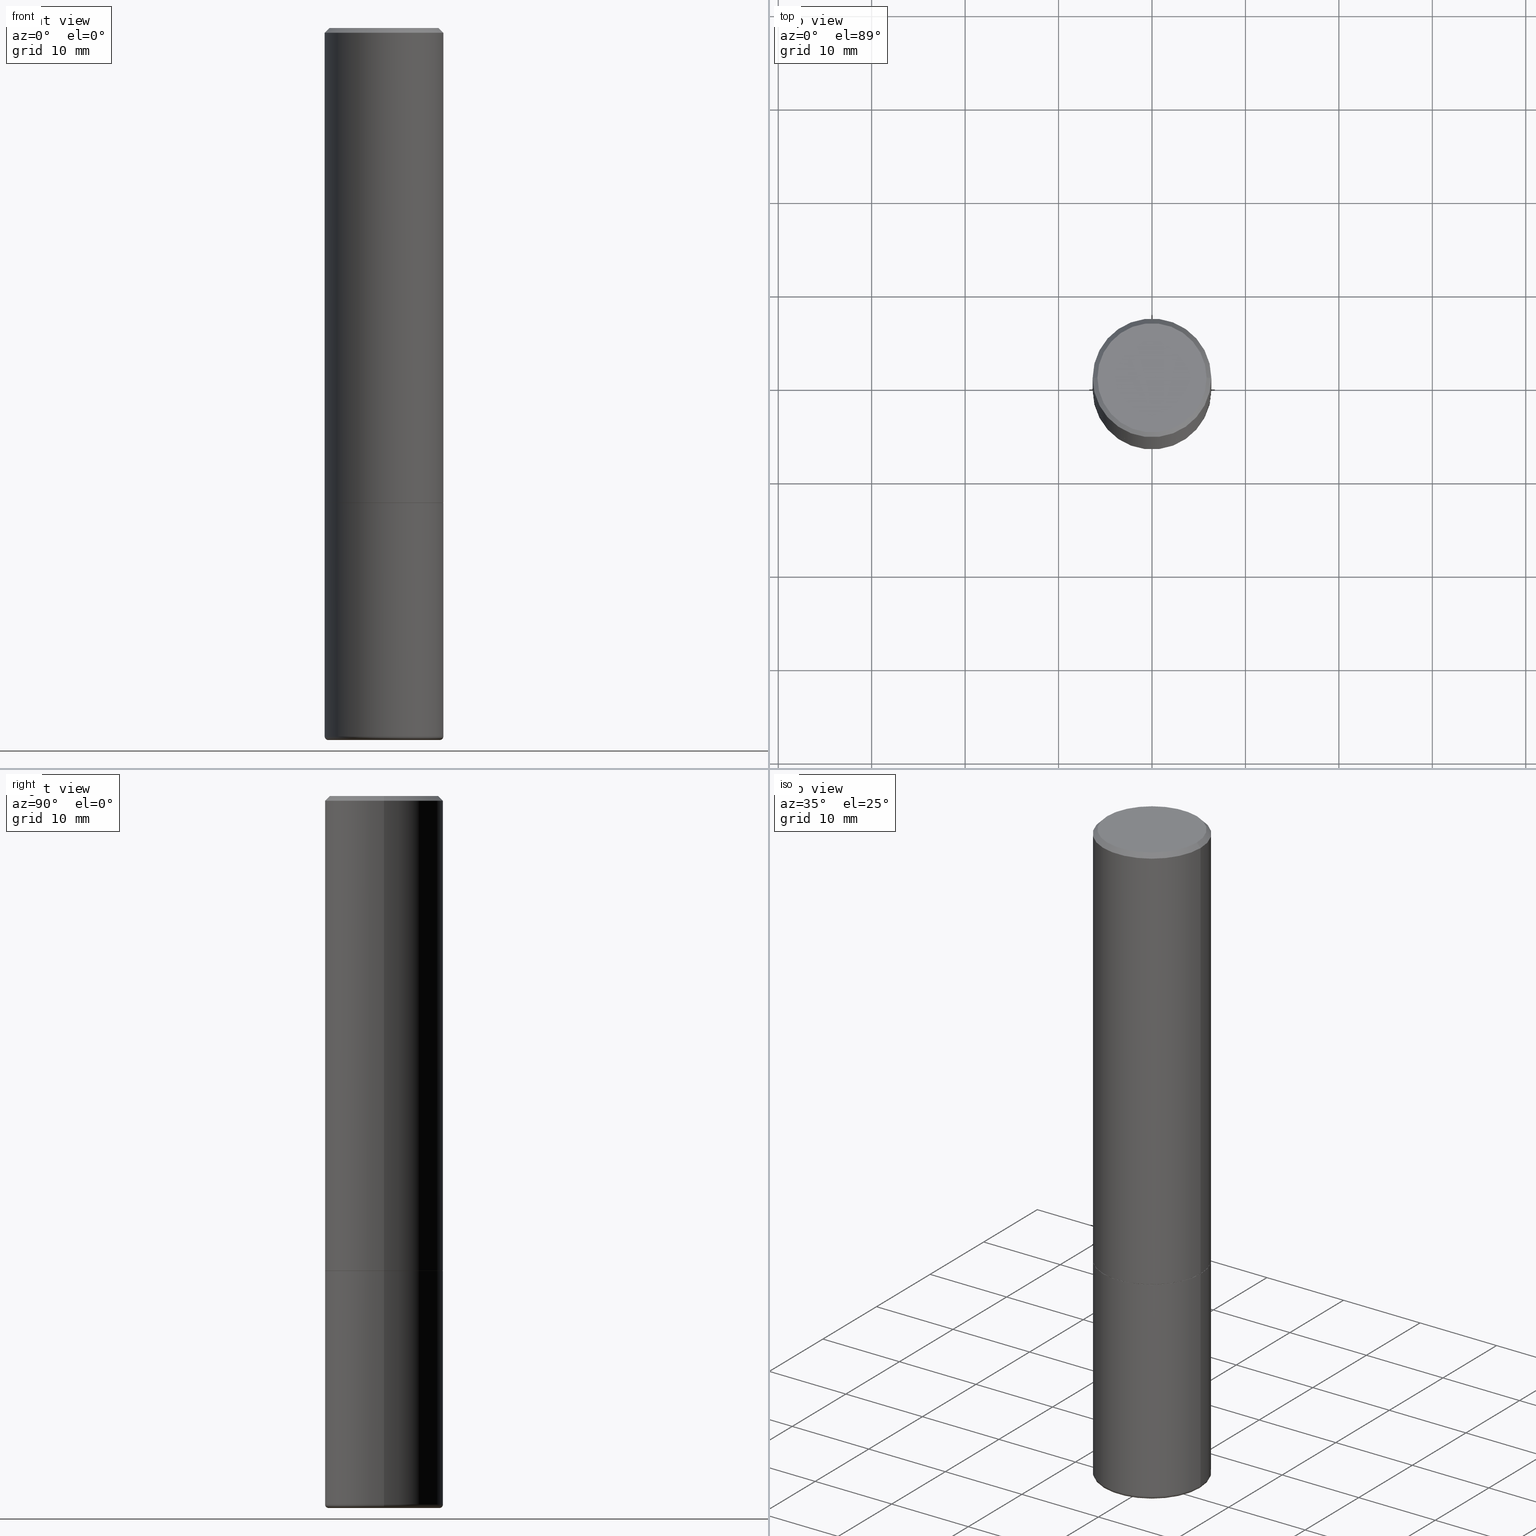
[diagram: canonical four-view strip — front | top / right | iso, engineering-drawing reading convention]
A machine part, canonical four-view strip (front | top / right | iso — engineering-drawing reading convention). The complete STEP part file that produces these views, byte-faithful:
ISO-10303-21;
HEADER;
FILE_DESCRIPTION (( 'STEP AP203' ),
    '1' );
FILE_NAME ('35694.STEP',
    '2022-11-02T20:44:12',
    ( '' ),
    ( '' ),
    'SwSTEP 2.0',
    'SolidWorks 2022',
    '' );
FILE_SCHEMA (( 'CONFIG_CONTROL_DESIGN' ));
ENDSEC;

DATA;
#1 = ADVANCED_BREP_SHAPE_REPRESENTATION ( '35694', ( #387, #395, #314 ), #342 ) ;
#2 = DIRECTION ( 'NONE',  ( 1.000000000000000000, -6.982962677686264344E-15, 0.000000000000000000 ) ) ;
#3 = AXIS2_PLACEMENT_3D ( 'NONE', #38, #111, #117 ) ;
#4 = VECTOR ( 'NONE', #438, 39.37007874015748854 ) ;
#5 = CARTESIAN_POINT ( 'NONE',  ( 7.335837353245335032E-29, -1.047363154208458493E-14, -2.999767298070359800 ) ) ;
#6 = PRODUCT_DEFINITION ( 'UNKNOWN', '', #98, #492 ) ;
#7 = ORIENTED_EDGE ( 'NONE', *, *, #339, .F. ) ;
#8 = DIRECTION ( 'NONE',  ( -2.445468806185136597E-29, 3.491481338843145583E-15, 1.000000000000000000 ) ) ;
#9 = EDGE_CURVE ( 'NONE', #241, #45, #279, .T. ) ;
#10 = ORIENTED_EDGE ( 'NONE', *, *, #309, .T. ) ;
#11 = DIRECTION ( 'NONE',  ( 1.000000000000000000, -6.982962677686266711E-15, 0.000000000000000000 ) ) ;
#12 = AXIS2_PLACEMENT_3D ( 'NONE', #312, #310, #11 ) ;
#13 = LOCAL_TIME ( 16, 44, 12.00000000000000000, #350 ) ;
#14 = CARTESIAN_POINT ( 'NONE',  ( 4.890937612370273754E-29, -6.982962677686291954E-15, -2.000000000000000444 ) ) ;
#15 = ORIENTED_EDGE ( 'NONE', *, *, #309, .F. ) ;
#16 = ORIENTED_EDGE ( 'NONE', *, *, #400, .F. ) ;
#17 = EDGE_CURVE ( 'NONE', #283, #45, #454, .T. ) ;
#18 = CALENDAR_DATE ( 2022, 2, 11 ) ;
#19 = ORIENTED_EDGE ( 'NONE', *, *, #268, .F. ) ;
#20 = AXIS2_PLACEMENT_3D ( 'NONE', #78, #193, #233 ) ;
#21 = ORIENTED_EDGE ( 'NONE', *, *, #272, .T. ) ;
#22 = ORIENTED_EDGE ( 'NONE', *, *, #339, .T. ) ;
#23 = PERSON_AND_ORGANIZATION_ROLE ( 'design_owner' ) ;
#24 = ADVANCED_FACE ( 'NONE', ( #138 ), #250, .F. ) ;
#25 = APPROVAL_ROLE ( '' ) ;
#26 = EDGE_CURVE ( 'NONE', #380, #348, #255, .T. ) ;
#27 = DIRECTION ( 'NONE',  ( -2.445468806185136597E-29, 3.491481338843145583E-15, 1.000000000000000000 ) ) ;
#28 = CARTESIAN_POINT ( 'NONE',  ( -0.2489999999999999991, -5.208412811295420884E-15, -2.000000000000000444 ) ) ;
#29 = VECTOR ( 'NONE', #343, 39.37007874015748143 ) ;
#30 = AXIS2_PLACEMENT_3D ( 'NONE', #375, #365, #149 ) ;
#31 = EDGE_LOOP ( 'NONE', ( #86, #83 ) ) ;
#32 = CARTESIAN_POINT ( 'NONE',  ( -0.2299999999999991773, 1.640996229256267194E-15, 4.268512490089056766E-18 ) ) ;
#33 = DIRECTION ( 'NONE',  ( 7.105427357601001859E-15, 1.000000000000000000, -3.491481338843145583E-15 ) ) ;
#34 = CARTESIAN_POINT ( 'NONE',  ( 0.2350000000000001810, -1.206307001987672688E-14, -2.985000571154037718 ) ) ;
#35 = DIRECTION ( 'NONE',  ( 1.000000000000000000, -6.982962677686266711E-15, 0.000000000000000000 ) ) ;
#36 = CIRCLE ( 'NONE', #180, 0.2500000000000000000 ) ;
#37 = VECTOR ( 'NONE', #479, 39.37007874015748143 ) ;
#38 = CARTESIAN_POINT ( 'NONE',  ( 4.890937612370273754E-29, -6.982962677686291954E-15, -2.000000000000000444 ) ) ;
#39 = CALENDAR_DATE ( 2022, 2, 11 ) ;
#40 = CC_DESIGN_PERSON_AND_ORGANIZATION_ASSIGNMENT ( #115, #263, ( #98 ) ) ;
#41 = DATE_AND_TIME ( #299, #182 ) ;
#42 = VERTEX_POINT ( 'NONE', #482 ) ;
#43 = CONICAL_SURFACE ( 'NONE', #79, 0.2489999999999999991, 0.7853981633974141952 ) ;
#44 = AXIS2_PLACEMENT_3D ( 'NONE', #221, #261, #490 ) ;
#45 = VERTEX_POINT ( 'NONE', #366 ) ;
#46 = CARTESIAN_POINT ( 'NONE',  ( 0.2499999999999993061, -1.784954126219741456E-15, -0.02000000000000011838 ) ) ;
#47 = CARTESIAN_POINT ( 'NONE',  ( 7.299725783202014843E-29, -1.042207379062045357E-14, -2.985000571154037718 ) ) ;
#48 = CALENDAR_DATE ( 2022, 2, 11 ) ;
#49 = VERTEX_POINT ( 'NONE', #32 ) ;
#50 = CLOSED_SHELL ( 'NONE', ( #210, #433, #253, #166, #413, #167, #73, #244 ) ) ;
#51 = AXIS2_PLACEMENT_3D ( 'NONE', #446, #401, #441 ) ;
#52 = ORIENTED_EDGE ( 'NONE', *, *, #418, .T. ) ;
#53 = COORDINATED_UNIVERSAL_TIME_OFFSET ( 5, 0, .BEHIND. ) ;
#54 = ORIENTED_EDGE ( 'NONE', *, *, #352, .F. ) ;
#55 = ORIENTED_EDGE ( 'NONE', *, *, #292, .F. ) ;
#56 = AXIS2_PLACEMENT_3D ( 'NONE', #125, #280, #228 ) ;
#57 = CIRCLE ( 'NONE', #408, 0.2500000000000000000 ) ;
#58 = CARTESIAN_POINT ( 'NONE',  ( -0.2499999999999996669, 1.776356839400248098E-15, -1.229733772563724764E-29 ) ) ;
#59 = ORIENTED_EDGE ( 'NONE', *, *, #145, .F. ) ;
#60 = CARTESIAN_POINT ( 'NONE',  ( -0.2489999999999999991, -5.213711265643642498E-15, -2.000000000000000444 ) ) ;
#61 = DIRECTION ( 'NONE',  ( 1.000000000000000000, -6.982962677686213068E-15, 0.000000000000000000 ) ) ;
#62 = CC_DESIGN_PERSON_AND_ORGANIZATION_ASSIGNMENT ( #92, #313, ( #6 ) ) ;
#63 = ORIENTED_EDGE ( 'NONE', *, *, #272, .F. ) ;
#64 = DIRECTION ( 'NONE',  ( 1.000000000000000000, -6.982962677686267499E-15, 0.000000000000000000 ) ) ;
#65 = CIRCLE ( 'NONE', #328, 0.2489999999999999991 ) ;
#66 = LINE ( 'NONE', #368, #378 ) ;
#67 = CARTESIAN_POINT ( 'NONE',  ( 7.335837353245335032E-29, -1.047363154208458493E-14, -2.999767298070359800 ) ) ;
#68 = FACE_OUTER_BOUND ( 'NONE', #126, .T. ) ;
#69 = DIRECTION ( 'NONE',  ( -2.445468806185136597E-29, 3.491481338843145583E-15, 1.000000000000000000 ) ) ;
#70 = CONICAL_SURFACE ( 'NONE', #427, 0.2348691019675246683, 1.562069680534929894 ) ;
#71 = COORDINATED_UNIVERSAL_TIME_OFFSET ( 5, 0, .BEHIND. ) ;
#72 = LINE ( 'NONE', #308, #29 ) ;
#73 = ADVANCED_FACE ( 'NONE', ( #444 ), #293, .F. ) ;
#74 = DIRECTION ( 'NONE',  ( 2.445468806185136597E-29, -3.491481338843145583E-15, -1.000000000000000000 ) ) ;
#75 = EDGE_CURVE ( 'NONE', #380, #163, #65, .T. ) ;
#76 = DIRECTION ( 'NONE',  ( -1.000000000000000000, 6.982962677686267499E-15, 0.000000000000000000 ) ) ;
#77 = VERTEX_POINT ( 'NONE', #106 ) ;
#78 = CARTESIAN_POINT ( 'NONE',  ( 7.336406418555409790E-29, -1.047444401652943635E-14, -3.000000000000000444 ) ) ;
#79 = AXIS2_PLACEMENT_3D ( 'NONE', #459, #148, #452 ) ;
#80 = EDGE_CURVE ( 'NONE', #431, #77, #188, .T. ) ;
#81 = DIRECTION ( 'NONE',  ( -1.000000000000000000, 6.982962677686267499E-15, 0.000000000000000000 ) ) ;
#82 = APPLICATION_CONTEXT ( 'configuration controlled 3d designs of mechanical parts and assemblies' ) ;
#83 = ORIENTED_EDGE ( 'NONE', *, *, #411, .T. ) ;
#84 = ORIENTED_EDGE ( 'NONE', *, *, #400, .T. ) ;
#85 = ORIENTED_EDGE ( 'NONE', *, *, #9, .T. ) ;
#86 = ORIENTED_EDGE ( 'NONE', *, *, #449, .T. ) ;
#87 = DIRECTION ( 'NONE',  ( -0.9999619230641714207, 6.952228252019186602E-15, -0.008726535498369011531 ) ) ;
#88 = CONICAL_SURFACE ( 'NONE', #104, 0.2348691019675246683, 1.562069680534929894 ) ;
#89 = CC_DESIGN_APPROVAL ( #369, ( #347 ) ) ;
#90 = EDGE_LOOP ( 'NONE', ( #435, #275, #464, #133 ) ) ;
#91 = ADVANCED_FACE ( 'NONE', ( #298 ), #88, .F. ) ;
#92 = PERSON_AND_ORGANIZATION ( #172, #355 ) ;
#93 = ORIENTED_EDGE ( 'NONE', *, *, #147, .T. ) ;
#94 = DIRECTION ( 'NONE',  ( 2.445468806185136597E-29, -3.491481338843145583E-15, -1.000000000000000000 ) ) ;
#95 = ORIENTED_EDGE ( 'NONE', *, *, #145, .T. ) ;
#96 = EDGE_LOOP ( 'NONE', ( #160, #399, #318, #16 ) ) ;
#97 = CONICAL_SURFACE ( 'NONE', #363, 0.2499999999999993061, 0.7853981633974483900 ) ;
#98 = PRODUCT_DEFINITION_FORMATION_WITH_SPECIFIED_SOURCE ( 'ANY', '', #118, .NOT_KNOWN. ) ;
#99 = LINE ( 'NONE', #287, #4 ) ;
#100 = CARTESIAN_POINT ( 'NONE',  ( 4.890937612370302936E-31, -6.982962677686332285E-17, -0.02000000000000011838 ) ) ;
#101 = DIRECTION ( 'NONE',  ( -2.445468806185136597E-29, 3.491481338843145583E-15, 1.000000000000000000 ) ) ;
#102 = TOROIDAL_SURFACE ( 'NONE', #354, 0.2350000000000001810, 0.01499999999999985199 ) ;
#103 = CARTESIAN_POINT ( 'NONE',  ( 7.318124011218951646E-29, -1.044815055147217763E-14, -2.992496650618315268 ) ) ;
#104 = AXIS2_PLACEMENT_3D ( 'NONE', #108, #262, #412 ) ;
#105 = VECTOR ( 'NONE', #295, 39.37007874015748143 ) ;
#106 = CARTESIAN_POINT ( 'NONE',  ( 0.2499999999999993061, -1.784954126219741456E-15, -0.02000000000000011838 ) ) ;
#107 = CARTESIAN_POINT ( 'NONE',  ( -1.043851414335219820E-46, 1.490343170380447200E-32, 4.268512490100411279E-18 ) ) ;
#108 = CARTESIAN_POINT ( 'NONE',  ( 7.336406418555409790E-29, -1.047444401652943635E-14, -3.000000000000000444 ) ) ;
#109 = CARTESIAN_POINT ( 'NONE',  ( 7.336406418555409790E-29, -1.047444401652943635E-14, -3.000000000000000444 ) ) ;
#110 = EDGE_CURVE ( 'NONE', #322, #241, #179, .T. ) ;
#111 = DIRECTION ( 'NONE',  ( -2.445468806185136597E-29, 3.491481338843145583E-15, 1.000000000000000000 ) ) ;
#112 = CC_DESIGN_PERSON_AND_ORGANIZATION_ASSIGNMENT ( #176, #23, ( #118 ) ) ;
#113 = AXIS2_PLACEMENT_3D ( 'NONE', #458, #161, #201 ) ;
#114 = CARTESIAN_POINT ( 'NONE',  ( 4.890937612370302936E-31, -6.982962677686332285E-17, -0.02000000000000011838 ) ) ;
#115 = PERSON_AND_ORGANIZATION ( #172, #355 ) ;
#116 = DIRECTION ( 'NONE',  ( 1.000000000000000000, -6.982962677686267499E-15, 0.000000000000000000 ) ) ;
#117 = DIRECTION ( 'NONE',  ( 1.000000000000000000, -6.982962677686266711E-15, 0.000000000000000000 ) ) ;
#118 = PRODUCT ( '35694', '35694', '', ( #286 ) ) ;
#119 = DATE_TIME_ROLE ( 'classification_date' ) ;
#120 = AXIS2_PLACEMENT_3D ( 'NONE', #491, #300, #456 ) ;
#121 = ORIENTED_EDGE ( 'NONE', *, *, #461, .T. ) ;
#122 = DIRECTION ( 'NONE',  ( -2.445468806185136597E-29, 3.491481338843145583E-15, 1.000000000000000000 ) ) ;
#123 = EDGE_LOOP ( 'NONE', ( #203, #285, #248, #211 ) ) ;
#124 = CARTESIAN_POINT ( 'NONE',  ( 0.2500000000000000000, -8.728703347107858632E-15, -2.000000000000000444 ) ) ;
#125 = CARTESIAN_POINT ( 'NONE',  ( 4.890937612370273754E-29, -6.982962677686291954E-15, -2.000000000000000444 ) ) ;
#126 = EDGE_LOOP ( 'NONE', ( #52, #22, #281, #200 ) ) ;
#127 = DIRECTION ( 'NONE',  ( -2.445468806185136597E-29, 3.491481338843145583E-15, 1.000000000000000000 ) ) ;
#128 = VERTEX_POINT ( 'NONE', #265 ) ;
#129 = CC_DESIGN_DATE_AND_TIME_ASSIGNMENT ( #305, #119, ( #347 ) ) ;
#130 = CONICAL_SURFACE ( 'NONE', #407, 0.2499999999999993061, 0.7853981633974483900 ) ;
#131 = AXIS2_PLACEMENT_3D ( 'NONE', #294, #486, #137 ) ;
#132 = APPROVAL_DATE_TIME ( #473, #170 ) ;
#133 = ORIENTED_EDGE ( 'NONE', *, *, #451, .F. ) ;
#134 = DIRECTION ( 'NONE',  ( 1.000000000000000000, 0.000000000000000000, 0.000000000000000000 ) ) ;
#135 = LOCAL_TIME ( 16, 44, 12.00000000000000000, #71 ) ;
#136 = PERSON_AND_ORGANIZATION ( #172, #355 ) ;
#137 = DIRECTION ( 'NONE',  ( 1.000000000000000000, -6.982962677686266711E-15, 0.000000000000000000 ) ) ;
#138 = FACE_OUTER_BOUND ( 'NONE', #158, .T. ) ;
#139 = CARTESIAN_POINT ( 'NONE',  ( 0.2500000000000000000, -1.745740669421566678E-15, 1.219044193948983948E-29 ) ) ;
#140 = DIRECTION ( 'NONE',  ( -2.445468806185136877E-29, 3.491481338843145188E-15, 1.000000000000000000 ) ) ;
#141 = CARTESIAN_POINT ( 'NONE',  ( -0.2500000000000000000, -6.926161394753122296E-15, -2.985000571154037718 ) ) ;
#142 = LOCAL_TIME ( 16, 44, 12.00000000000000000, #53 ) ;
#143 = COORDINATED_UNIVERSAL_TIME_OFFSET ( 5, 0, .BEHIND. ) ;
#144 = LENGTH_MEASURE_WITH_UNIT ( LENGTH_MEASURE( 0.02539999999999999897 ), #485 );
#145 = EDGE_CURVE ( 'NONE', #348, #431, #36, .T. ) ;
#146 = APPROVAL_STATUS ( 'not_yet_approved' ) ;
#147 = EDGE_CURVE ( 'NONE', #49, #128, #72, .T. ) ;
#148 = DIRECTION ( 'NONE',  ( -2.445468806185136597E-29, 3.491481338843145583E-15, 1.000000000000000000 ) ) ;
#149 = DIRECTION ( 'NONE',  ( 1.000000000000000000, -6.982962677686269077E-15, 0.000000000000000000 ) ) ;
#150 = EDGE_CURVE ( 'NONE', #45, #283, #189, .T. ) ;
#151 = FACE_OUTER_BOUND ( 'NONE', #96, .T. ) ;
#152 = CARTESIAN_POINT ( 'NONE',  ( 4.890937612370302936E-31, -6.982962677686332285E-17, -0.02000000000000011838 ) ) ;
#153 = VECTOR ( 'NONE', #360, 39.37007874015748854 ) ;
#154 = VECTOR ( 'NONE', #140, 39.37007874015748143 ) ;
#155 = DIRECTION ( 'NONE',  ( -0.9993908270190957621, 6.856857904024552526E-15, -0.03489949670250241942 ) ) ;
#156 = UNCERTAINTY_MEASURE_WITH_UNIT (LENGTH_MEASURE( 1.000000000000000082E-05 ), #297, 'distance_accuracy_value', 'NONE');
#157 = PERSON_AND_ORGANIZATION_ROLE ( 'design_supplier' ) ;
#158 = EDGE_LOOP ( 'NONE', ( #428, #21 ) ) ;
#159 = DIRECTION ( 'NONE',  ( 1.000000000000000000, -6.982962677686269077E-15, 0.000000000000000000 ) ) ;
#160 = ORIENTED_EDGE ( 'NONE', *, *, #461, .F. ) ;
#161 = DIRECTION ( 'NONE',  ( 2.438088387897960049E-29, -3.491481338843145188E-15, -1.000000000000000000 ) ) ;
#162 = CIRCLE ( 'NONE', #3, 0.2500000000000000000 ) ;
#163 = VERTEX_POINT ( 'NONE', #227 ) ;
#164 = APPROVAL_PERSON_ORGANIZATION ( #425, #207, #194 ) ;
#165 = FACE_OUTER_BOUND ( 'NONE', #197, .T. ) ;
#166 = ADVANCED_FACE ( 'NONE', ( #229 ), #97, .T. ) ;
#167 = ADVANCED_FACE ( 'NONE', ( #374 ), #43, .T. ) ;
#168 = ORIENTED_EDGE ( 'NONE', *, *, #206, .F. ) ;
#169 = ORIENTED_EDGE ( 'NONE', *, *, #75, .T. ) ;
#170 = APPROVAL ( #171, 'UNSPECIFIED' ) ;
#171 = APPROVAL_STATUS ( 'not_yet_approved' ) ;
#172 = PERSON ( 'UNSPECIFIED', 'UNSPECIFIED', 'UNSPECIFIED', ('UNSPECIFIED'), ('UNSPECIFIED'), ('UNSPECIFIED') ) ;
#173 = AXIS2_PLACEMENT_3D ( 'NONE', #216, #181, #357 ) ;
#174 = CIRCLE ( 'NONE', #190, 0.2299999999999991773 ) ;
#175 = VECTOR ( 'NONE', #215, 39.37007874015747433 ) ;
#176 = PERSON_AND_ORGANIZATION ( #172, #355 ) ;
#177 = ORIENTED_EDGE ( 'NONE', *, *, #17, .T. ) ;
#178 = DIRECTION ( 'NONE',  ( 1.000000000000000000, -6.982962677686266711E-15, 0.000000000000000000 ) ) ;
#179 = LINE ( 'NONE', #402, #202 ) ;
#180 = AXIS2_PLACEMENT_3D ( 'NONE', #424, #270, #416 ) ;
#181 = DIRECTION ( 'NONE',  ( 2.438088387897960049E-29, -3.491481338843145188E-15, -1.000000000000000000 ) ) ;
#182 = LOCAL_TIME ( 16, 44, 12.00000000000000000, #303 ) ;
#183 = DIRECTION ( 'NONE',  ( 1.000000000000000000, -6.982962677686266711E-15, 4.876176775795935793E-29 ) ) ;
#184 = ORIENTED_EDGE ( 'NONE', *, *, #110, .F. ) ;
#185 = EDGE_CURVE ( 'NONE', #468, #340, #162, .T. ) ;
#186 = FACE_OUTER_BOUND ( 'NONE', #246, .T. ) ;
#187 = CARTESIAN_POINT ( 'NONE',  ( 7.299725783202014843E-29, -1.042207379062045357E-14, -2.985000571154037718 ) ) ;
#188 = LINE ( 'NONE', #259, #219 ) ;
#189 = CIRCLE ( 'NONE', #20, 0.2348691019675246683 ) ;
#190 = AXIS2_PLACEMENT_3D ( 'NONE', #107, #27, #331 ) ;
#191 = CC_DESIGN_PERSON_AND_ORGANIZATION_ASSIGNMENT ( #484, #414, ( #347 ) ) ;
#192 = DATE_AND_TIME ( #48, #13 ) ;
#193 = DIRECTION ( 'NONE',  ( -2.445468806185136597E-29, 3.491481338843145583E-15, 1.000000000000000000 ) ) ;
#194 = APPROVAL_ROLE ( '' ) ;
#195 = VECTOR ( 'NONE', #199, 39.37007874015748143 ) ;
#196 = AXIS2_PLACEMENT_3D ( 'NONE', #223, #69, #367 ) ;
#197 = EDGE_LOOP ( 'NONE', ( #385, #349, #15, #316 ) ) ;
#198 = ORIENTED_EDGE ( 'NONE', *, *, #306, .T. ) ;
#199 = DIRECTION ( 'NONE',  ( 0.7071067811865475727, -7.319954787623256045E-15, -0.7071067811865474617 ) ) ;
#200 = ORIENTED_EDGE ( 'NONE', *, *, #9, .F. ) ;
#201 = DIRECTION ( 'NONE',  ( -1.000000000000000000, 6.982962677686265922E-15, -4.876176775795935793E-29 ) ) ;
#202 = VECTOR ( 'NONE', #155, 39.37007874015747433 ) ;
#203 = ORIENTED_EDGE ( 'NONE', *, *, #411, .F. ) ;
#204 = EDGE_LOOP ( 'NONE', ( #376, #95, #396, #168 ) ) ;
#205 = LOCAL_TIME ( 16, 44, 12.00000000000000000, #143 ) ;
#206 = EDGE_CURVE ( 'NONE', #128, #77, #282, .T. ) ;
#207 = APPROVAL ( #146, 'UNSPECIFIED' ) ;
#208 = EDGE_LOOP ( 'NONE', ( #266, #356 ) ) ;
#209 = ORIENTED_EDGE ( 'NONE', *, *, #358, .F. ) ;
#210 = ADVANCED_FACE ( 'NONE', ( #165 ), #273, .T. ) ;
#211 = ORIENTED_EDGE ( 'NONE', *, *, #147, .F. ) ;
#212 = CIRCLE ( 'NONE', #274, 0.2500000000000000000 ) ;
#213 = CYLINDRICAL_SURFACE ( 'NONE', #51, 0.2500000000000000000 ) ;
#214 = EDGE_LOOP ( 'NONE', ( #10, #198, #54, #457 ) ) ;
#215 = DIRECTION ( 'NONE',  ( 0.9993908270190957621, -6.978169709227547799E-15, -0.03489949670250241942 ) ) ;
#216 = CARTESIAN_POINT ( 'NONE',  ( 1.745740669421615390E-15, 0.2499999999999930334, -2.000000000000000888 ) ) ;
#217 = CARTESIAN_POINT ( 'NONE',  ( 0.000000000000000000, 0.000000000000000000, 0.000000000000000000 ) ) ;
#218 = CARTESIAN_POINT ( 'NONE',  ( -0.2500000000000000000, -6.926161394753122296E-15, -2.000000000000000444 ) ) ;
#219 = VECTOR ( 'NONE', #336, 39.37007874015748143 ) ;
#220 = CARTESIAN_POINT ( 'NONE',  ( 4.890937612370273754E-29, -6.982962677686291954E-15, -2.000000000000000444 ) ) ;
#221 = CARTESIAN_POINT ( 'NONE',  ( -1.043851414335219820E-46, 1.490343170380447200E-32, 4.268512490100411279E-18 ) ) ;
#222 = DIRECTION ( 'NONE',  ( -2.445468806185136597E-29, 3.491481338843145583E-15, 1.000000000000000000 ) ) ;
#223 = CARTESIAN_POINT ( 'NONE',  ( 0.000000000000000000, 0.000000000000000000, 0.000000000000000000 ) ) ;
#224 = CYLINDRICAL_SURFACE ( 'NONE', #474, 0.2499999999999996669 ) ;
#225 = PERSON_AND_ORGANIZATION ( #172, #355 ) ;
#226 = DIRECTION ( 'NONE',  ( 2.445468806185136597E-29, -3.491481338843145583E-15, -1.000000000000000000 ) ) ;
#227 = CARTESIAN_POINT ( 'NONE',  ( 0.2489999999999999991, -8.721720384430172617E-15, -2.000000000000000444 ) ) ;
#228 = DIRECTION ( 'NONE',  ( 1.000000000000000000, -6.982962677686266711E-15, 0.000000000000000000 ) ) ;
#229 = FACE_OUTER_BOUND ( 'NONE', #236, .T. ) ;
#230 = DIRECTION ( 'NONE',  ( -1.000000000000000000, 6.982962677686269077E-15, 0.000000000000000000 ) ) ;
#231 = LINE ( 'NONE', #46, #195 ) ;
#232 = DIRECTION ( 'NONE',  ( -2.445468806185136597E-29, 3.491481338843145583E-15, 1.000000000000000000 ) ) ;
#233 = DIRECTION ( 'NONE',  ( 1.000000000000000000, -6.982962677686264344E-15, 0.000000000000000000 ) ) ;
#234 = AXIS2_PLACEMENT_3D ( 'NONE', #337, #74, #230 ) ;
#235 = EDGE_LOOP ( 'NONE', ( #177, #121, #393, #209 ) ) ;
#236 = EDGE_LOOP ( 'NONE', ( #344, #311, #93, #323 ) ) ;
#237 = CC_DESIGN_DATE_AND_TIME_ASSIGNMENT ( #192, #463, ( #6 ) ) ;
#238 = VERTEX_POINT ( 'NONE', #382 ) ;
#239 = CARTESIAN_POINT ( 'NONE',  ( 7.336406418555409790E-29, -1.047444401652943635E-14, -3.000000000000000444 ) ) ;
#240 = CLOSED_SHELL ( 'NONE', ( #290, #269, #264, #477, #475, #24, #304, #278, #91 ) ) ;
#241 = VERTEX_POINT ( 'NONE', #381 ) ;
#242 = DIRECTION ( 'NONE',  ( -2.445468806185136597E-29, 3.491481338843145583E-15, 1.000000000000000000 ) ) ;
#243 = APPROVAL_PERSON_ORGANIZATION ( #225, #369, #25 ) ;
#244 = ADVANCED_FACE ( 'NONE', ( #317 ), #462, .F. ) ;
#245 = ORIENTED_EDGE ( 'NONE', *, *, #326, .T. ) ;
#246 = EDGE_LOOP ( 'NONE', ( #184, #476, #345 ) ) ;
#247 = LINE ( 'NONE', #410, #37 ) ;
#248 = ORIENTED_EDGE ( 'NONE', *, *, #352, .T. ) ;
#249 = AXIS2_PLACEMENT_3D ( 'NONE', #67, #226, #372 ) ;
#250 = PLANE ( 'NONE',  #173 ) ;
#251 = APPLICATION_CONTEXT ( 'configuration controlled 3d designs of mechanical parts and assemblies' ) ;
#252 = DIRECTION ( 'NONE',  ( 0.9999619230641714207, -6.890705306874825328E-15, -0.008726535498369011531 ) ) ;
#253 = ADVANCED_FACE ( 'NONE', ( #420 ), #130, .T. ) ;
#254 = APPROVAL_DATE_TIME ( #443, #369 ) ;
#255 = LINE ( 'NONE', #60, #153 ) ;
#256 = CYLINDRICAL_SURFACE ( 'NONE', #196, 0.2499999999999996669 ) ;
#257 = EDGE_CURVE ( 'NONE', #42, #77, #231, .T. ) ;
#258 = AXIS2_PLACEMENT_3D ( 'NONE', #346, #122, #276 ) ;
#259 = CARTESIAN_POINT ( 'NONE',  ( 0.2499999999999996669, -1.745740669421564311E-15, 1.219044193948982267E-29 ) ) ;
#260 = CIRCLE ( 'NONE', #30, 0.2082041019675246463 ) ;
#261 = DIRECTION ( 'NONE',  ( -2.445468806185136597E-29, 3.491481338843145583E-15, 1.000000000000000000 ) ) ;
#262 = DIRECTION ( 'NONE',  ( 2.445468806185136597E-29, -3.491481338843145583E-15, -1.000000000000000000 ) ) ;
#263 = PERSON_AND_ORGANIZATION_ROLE ( 'creator' ) ;
#264 = ADVANCED_FACE ( 'NONE', ( #423 ), #466, .T. ) ;
#265 = CARTESIAN_POINT ( 'NONE',  ( -0.2499999999999993061, 1.675911042644698449E-15, -0.02000000000000011838 ) ) ;
#266 = ORIENTED_EDGE ( 'NONE', *, *, #397, .F. ) ;
#267 = PERSON_AND_ORGANIZATION ( #172, #355 ) ;
#268 = EDGE_CURVE ( 'NONE', #391, #241, #472, .T. ) ;
#269 = ADVANCED_FACE ( 'NONE', ( #429 ), #102, .T. ) ;
#270 = DIRECTION ( 'NONE',  ( -2.445468806185136597E-29, 3.491481338843145583E-15, 1.000000000000000000 ) ) ;
#271 = CARTESIAN_POINT ( 'NONE',  ( 4.890937612370302936E-31, -6.982962677686332285E-17, -0.02000000000000011838 ) ) ;
#272 = EDGE_CURVE ( 'NONE', #340, #468, #377, .T. ) ;
#273 = CONICAL_SURFACE ( 'NONE', #12, 0.2489999999999999991, 0.7853981633974141952 ) ;
#274 = AXIS2_PLACEMENT_3D ( 'NONE', #187, #222, #362 ) ;
#275 = ORIENTED_EDGE ( 'NONE', *, *, #324, .T. ) ;
#276 = DIRECTION ( 'NONE',  ( 1.000000000000000000, -6.982962677686266711E-15, 4.876176775795935793E-29 ) ) ;
#277 = PRODUCT_RELATED_PRODUCT_CATEGORY ( 'detail', '', ( #118 ) ) ;
#278 = ADVANCED_FACE ( 'NONE', ( #151 ), #335, .T. ) ;
#279 = LINE ( 'NONE', #430, #341 ) ;
#280 = DIRECTION ( 'NONE',  ( -2.445468806185136597E-29, 3.491481338843145583E-15, 1.000000000000000000 ) ) ;
#281 = ORIENTED_EDGE ( 'NONE', *, *, #150, .F. ) ;
#282 = CIRCLE ( 'NONE', #301, 0.2499999999999993061 ) ;
#283 = VERTEX_POINT ( 'NONE', #338 ) ;
#284 = CC_DESIGN_APPROVAL ( #170, ( #6 ) ) ;
#285 = ORIENTED_EDGE ( 'NONE', *, *, #257, .T. ) ;
#286 = MECHANICAL_CONTEXT ( 'NONE', #251, 'mechanical' ) ;
#287 = CARTESIAN_POINT ( 'NONE',  ( 0.2489999999999999991, -8.721720384430172617E-15, -2.000000000000000444 ) ) ;
#288 = AXIS2_PLACEMENT_3D ( 'NONE', #371, #440, #450 ) ;
#289 = CC_DESIGN_APPROVAL ( #207, ( #98 ) ) ;
#290 = ADVANCED_FACE ( 'NONE', ( #68 ), #70, .F. ) ;
#291 = FACE_OUTER_BOUND ( 'NONE', #394, .T. ) ;
#292 = EDGE_CURVE ( 'NONE', #322, #391, #333, .T. ) ;
#293 = PLANE ( 'NONE',  #288 ) ;
#294 = CARTESIAN_POINT ( 'NONE',  ( 4.888492143564088712E-29, -6.979471196347448158E-15, -1.999000000000000110 ) ) ;
#295 = DIRECTION ( 'NONE',  ( -2.445468806185136877E-29, 3.491481338843145188E-15, 1.000000000000000000 ) ) ;
#296 = CONICAL_SURFACE ( 'NONE', #249, 0.2082041019675246463, 1.535889741755008586 ) ;
#297 =( CONVERSION_BASED_UNIT ( 'INCH', #144 ) LENGTH_UNIT ( ) NAMED_UNIT ( #405 ) );
#298 = FACE_OUTER_BOUND ( 'NONE', #386, .T. ) ;
#299 = CALENDAR_DATE ( 2022, 2, 11 ) ;
#300 = DIRECTION ( 'NONE',  ( -2.445468806185136597E-29, 3.491481338843145583E-15, 1.000000000000000000 ) ) ;
#301 = AXIS2_PLACEMENT_3D ( 'NONE', #114, #8, #116 ) ;
#302 = CIRCLE ( 'NONE', #131, 0.2500000000000000000 ) ;
#303 = COORDINATED_UNIVERSAL_TIME_OFFSET ( 5, 0, .BEHIND. ) ;
#304 = ADVANCED_FACE ( 'NONE', ( #291 ), #213, .T. ) ;
#305 = DATE_AND_TIME ( #39, #135 ) ;
#306 = EDGE_CURVE ( 'NONE', #348, #128, #327, .T. ) ;
#307 = DIRECTION ( 'NONE',  ( -2.445468806185136597E-29, 3.491481338843145583E-15, 1.000000000000000000 ) ) ;
#308 = CARTESIAN_POINT ( 'NONE',  ( -0.2499999999999993061, 1.675911042644698449E-15, -0.02000000000000011838 ) ) ;
#309 = EDGE_CURVE ( 'NONE', #431, #348, #302, .T. ) ;
#310 = DIRECTION ( 'NONE',  ( -2.445468806185136597E-29, 3.491481338843145583E-15, 1.000000000000000000 ) ) ;
#311 = ORIENTED_EDGE ( 'NONE', *, *, #449, .F. ) ;
#312 = CARTESIAN_POINT ( 'NONE',  ( 4.890937612370273754E-29, -6.982962677686291954E-15, -2.000000000000000444 ) ) ;
#313 = PERSON_AND_ORGANIZATION_ROLE ( 'creator' ) ;
#314 = AXIS2_PLACEMENT_3D ( 'NONE', #320, #351, #134 ) ;
#315 = ORIENTED_EDGE ( 'NONE', *, *, #110, .T. ) ;
#316 = ORIENTED_EDGE ( 'NONE', *, *, #326, .F. ) ;
#317 = FACE_OUTER_BOUND ( 'NONE', #31, .T. ) ;
#318 = ORIENTED_EDGE ( 'NONE', *, *, #358, .T. ) ;
#319 = ORIENTED_EDGE ( 'NONE', *, *, #17, .F. ) ;
#320 = CARTESIAN_POINT ( 'NONE',  ( 0.000000000000000000, 0.000000000000000000, 0.000000000000000000 ) ) ;
#321 = AXIS2_PLACEMENT_3D ( 'NONE', #5, #232, #159 ) ;
#322 = VERTEX_POINT ( 'NONE', #103 ) ;
#323 = ORIENTED_EDGE ( 'NONE', *, *, #206, .T. ) ;
#324 = EDGE_CURVE ( 'NONE', #437, #340, #247, .T. ) ;
#325 = CARTESIAN_POINT ( 'NONE',  ( 7.299725783202014843E-29, -1.042207379062045357E-14, -2.985000571154037718 ) ) ;
#326 = EDGE_CURVE ( 'NONE', #163, #431, #99, .T. ) ;
#327 = LINE ( 'NONE', #58, #154 ) ;
#328 = AXIS2_PLACEMENT_3D ( 'NONE', #220, #101, #35 ) ;
#329 = SHAPE_DEFINITION_REPRESENTATION ( #390, #1 ) ;
#330 = CIRCLE ( 'NONE', #467, 0.2499999999999993061 ) ;
#331 = DIRECTION ( 'NONE',  ( 1.000000000000000000, -6.982962677686267499E-15, 4.876225828469326258E-29 ) ) ;
#332 = FACE_OUTER_BOUND ( 'NONE', #204, .T. ) ;
#333 = LINE ( 'NONE', #483, #175 ) ;
#334 = CALENDAR_DATE ( 2022, 2, 11 ) ;
#335 = TOROIDAL_SURFACE ( 'NONE', #120, 0.2350000000000001810, 0.01499999999999985199 ) ;
#336 = DIRECTION ( 'NONE',  ( -2.445468806185136877E-29, 3.491481338843145188E-15, 1.000000000000000000 ) ) ;
#337 = CARTESIAN_POINT ( 'NONE',  ( 7.335837353245335032E-29, -1.047363154208458493E-14, -2.999767298070359800 ) ) ;
#338 = CARTESIAN_POINT ( 'NONE',  ( 0.2348691019675246683, -1.211452618971035153E-14, -3.000000000000000444 ) ) ;
#339 = EDGE_CURVE ( 'NONE', #391, #283, #66, .T. ) ;
#340 = VERTEX_POINT ( 'NONE', #218 ) ;
#341 = VECTOR ( 'NONE', #87, 39.37007874015748854 ) ;
#342 =( GEOMETRIC_REPRESENTATION_CONTEXT ( 3 ) GLOBAL_UNCERTAINTY_ASSIGNED_CONTEXT ( ( #156 ) ) GLOBAL_UNIT_ASSIGNED_CONTEXT ( ( #297, #488, #448 ) ) REPRESENTATION_CONTEXT ( 'NONE', 'WORKASPACE' ) );
#343 = DIRECTION ( 'NONE',  ( -0.7071067811865475727, 2.468850131082257455E-15, -0.7071067811865474617 ) ) ;
#344 = ORIENTED_EDGE ( 'NONE', *, *, #257, .F. ) ;
#345 = ORIENTED_EDGE ( 'NONE', *, *, #418, .F. ) ;
#346 = CARTESIAN_POINT ( 'NONE',  ( 0.000000000000000000, 0.000000000000000000, 0.000000000000000000 ) ) ;
#347 = SECURITY_CLASSIFICATION ( '', '', #384 ) ;
#348 = VERTEX_POINT ( 'NONE', #442 ) ;
#349 = ORIENTED_EDGE ( 'NONE', *, *, #26, .T. ) ;
#350 = COORDINATED_UNIVERSAL_TIME_OFFSET ( 5, 0, .BEHIND. ) ;
#351 = DIRECTION ( 'NONE',  ( 0.000000000000000000, 0.000000000000000000, 1.000000000000000000 ) ) ;
#352 = EDGE_CURVE ( 'NONE', #77, #128, #330, .T. ) ;
#353 = ORIENTED_EDGE ( 'NONE', *, *, #451, .T. ) ;
#354 = AXIS2_PLACEMENT_3D ( 'NONE', #47, #307, #469 ) ;
#355 = ORGANIZATION ( 'UNSPECIFIED', 'UNSPECIFIED', '' ) ;
#356 = ORIENTED_EDGE ( 'NONE', *, *, #75, .F. ) ;
#357 = DIRECTION ( 'NONE',  ( -1.000000000000000000, 6.982962677686265922E-15, -4.876176775795935793E-29 ) ) ;
#358 = EDGE_CURVE ( 'NONE', #283, #238, #447, .T. ) ;
#359 = EDGE_CURVE ( 'NONE', #238, #437, #212, .T. ) ;
#360 = DIRECTION ( 'NONE',  ( -0.7071067811865232589, 7.493145998870265808E-15, 0.7071067811865715536 ) ) ;
#361 = DIRECTION ( 'NONE',  ( -2.445468806185136597E-29, 3.491481338843145583E-15, 1.000000000000000000 ) ) ;
#362 = DIRECTION ( 'NONE',  ( 1.000000000000000000, -6.982962677686270655E-15, 0.000000000000000000 ) ) ;
#363 = AXIS2_PLACEMENT_3D ( 'NONE', #152, #421, #76 ) ;
#364 = AXIS2_PLACEMENT_3D ( 'NONE', #14, #417, #178 ) ;
#365 = DIRECTION ( 'NONE',  ( -2.445468806185136597E-29, 3.491481338843145583E-15, 1.000000000000000000 ) ) ;
#366 = CARTESIAN_POINT ( 'NONE',  ( -0.2348691019675246683, -8.725657812587205291E-15, -3.000000000000000444 ) ) ;
#367 = DIRECTION ( 'NONE',  ( 1.000000000000000000, -6.982962677686266711E-15, 4.876176775795935793E-29 ) ) ;
#368 = CARTESIAN_POINT ( 'NONE',  ( 0.2348691019675246683, -1.208576302031603783E-14, -3.000000000000000444 ) ) ;
#369 = APPROVAL ( #370, 'UNSPECIFIED' ) ;
#370 = APPROVAL_STATUS ( 'not_yet_approved' ) ;
#371 = CARTESIAN_POINT ( 'NONE',  ( 4.890937612370273754E-29, -6.982962677686291954E-15, -2.000000000000000444 ) ) ;
#372 = DIRECTION ( 'NONE',  ( -1.000000000000000000, 6.982962677686269077E-15, 0.000000000000000000 ) ) ;
#373 = AXIS2_PLACEMENT_3D ( 'NONE', #34, #404, #61 ) ;
#374 = FACE_OUTER_BOUND ( 'NONE', #470, .T. ) ;
#375 = CARTESIAN_POINT ( 'NONE',  ( 7.335837353245335032E-29, -1.047363154208458493E-14, -2.999767298070359800 ) ) ;
#376 = ORIENTED_EDGE ( 'NONE', *, *, #306, .F. ) ;
#377 = CIRCLE ( 'NONE', #56, 0.2500000000000000000 ) ;
#378 = VECTOR ( 'NONE', #252, 39.37007874015748854 ) ;
#379 = CIRCLE ( 'NONE', #434, 0.01499999999999983985 ) ;
#380 = VERTEX_POINT ( 'NONE', #28 ) ;
#381 = CARTESIAN_POINT ( 'NONE',  ( -0.2082041019675246463, -9.019750068704174352E-15, -2.999767298070359800 ) ) ;
#382 = CARTESIAN_POINT ( 'NONE',  ( 0.2500000000000000000, -1.216781446004202182E-14, -2.985000571154037718 ) ) ;
#383 = CARTESIAN_POINT ( 'NONE',  ( 0.2082041019675246463, -1.190201536676060908E-14, -2.999767298070359800 ) ) ;
#384 = SECURITY_CLASSIFICATION_LEVEL ( 'unclassified' ) ;
#385 = ORIENTED_EDGE ( 'NONE', *, *, #397, .T. ) ;
#386 = EDGE_LOOP ( 'NONE', ( #7, #460, #85, #319 ) ) ;
#387 = MANIFOLD_SOLID_BREP ( 'Body-Move/Copy2[1]', #240 ) ;
#388 = AXIS2_PLACEMENT_3D ( 'NONE', #239, #242, #2 ) ;
#389 = APPROVAL_PERSON_ORGANIZATION ( #136, #170, #471 ) ;
#390 = PRODUCT_DEFINITION_SHAPE ( 'NONE', 'NONE',  #6 ) ;
#391 = VERTEX_POINT ( 'NONE', #383 ) ;
#392 = DIRECTION ( 'NONE',  ( 1.000000000000000000, -6.982962677686270655E-15, 0.000000000000000000 ) ) ;
#393 = ORIENTED_EDGE ( 'NONE', *, *, #359, .F. ) ;
#394 = EDGE_LOOP ( 'NONE', ( #422, #84, #353, #63 ) ) ;
#395 = MANIFOLD_SOLID_BREP ( 'Body-Move/Copy2[2]', #50 ) ;
#396 = ORIENTED_EDGE ( 'NONE', *, *, #80, .T. ) ;
#397 = EDGE_CURVE ( 'NONE', #163, #380, #487, .T. ) ;
#398 = DIRECTION ( 'NONE',  ( -1.000000000000000000, 6.982962677686264344E-15, 0.000000000000000000 ) ) ;
#399 = ORIENTED_EDGE ( 'NONE', *, *, #150, .T. ) ;
#400 = EDGE_CURVE ( 'NONE', #437, #238, #57, .T. ) ;
#401 = DIRECTION ( 'NONE',  ( -2.445468806185136597E-29, 3.491481338843145583E-15, 1.000000000000000000 ) ) ;
#402 = CARTESIAN_POINT ( 'NONE',  ( -0.2082041019675246463, -9.019750068704174352E-15, -2.999767298070359800 ) ) ;
#403 = CARTESIAN_POINT ( 'NONE',  ( 0.2500000000000000000, -8.725211865769015625E-15, -1.999000000000000110 ) ) ;
#404 = DIRECTION ( 'NONE',  ( -6.982962677686266711E-15, -1.000000000000000000, 3.491481338843145583E-15 ) ) ;
#405 = DIMENSIONAL_EXPONENTS ( 1.000000000000000000, 0.000000000000000000, 0.000000000000000000, 0.000000000000000000, 0.000000000000000000, 0.000000000000000000, 0.000000000000000000 ) ;
#406 = DIRECTION ( 'NONE',  ( -2.445468806185136597E-29, 3.491481338843145583E-15, 1.000000000000000000 ) ) ;
#407 = AXIS2_PLACEMENT_3D ( 'NONE', #271, #426, #81 ) ;
#408 = AXIS2_PLACEMENT_3D ( 'NONE', #325, #127, #392 ) ;
#409 = CC_DESIGN_PERSON_AND_ORGANIZATION_ASSIGNMENT ( #267, #157, ( #98 ) ) ;
#410 = CARTESIAN_POINT ( 'NONE',  ( -0.2500000000000000000, 1.776356839400250465E-15, -1.229733772563726445E-29 ) ) ;
#411 = EDGE_CURVE ( 'NONE', #42, #49, #455, .T. ) ;
#412 = DIRECTION ( 'NONE',  ( -1.000000000000000000, 6.982962677686264344E-15, 0.000000000000000000 ) ) ;
#413 = ADVANCED_FACE ( 'NONE', ( #332 ), #256, .T. ) ;
#414 = PERSON_AND_ORGANIZATION_ROLE ( 'classification_officer' ) ;
#415 = CC_DESIGN_SECURITY_CLASSIFICATION ( #347, ( #98 ) ) ;
#416 = DIRECTION ( 'NONE',  ( 1.000000000000000000, -6.982962677686266711E-15, 0.000000000000000000 ) ) ;
#417 = DIRECTION ( 'NONE',  ( -2.445468806185136597E-29, 3.491481338843145583E-15, 1.000000000000000000 ) ) ;
#418 = EDGE_CURVE ( 'NONE', #241, #391, #260, .T. ) ;
#419 = FACE_OUTER_BOUND ( 'NONE', #432, .T. ) ;
#420 = FACE_OUTER_BOUND ( 'NONE', #123, .T. ) ;
#421 = DIRECTION ( 'NONE',  ( 2.445468806185136597E-29, -3.491481338843145583E-15, -1.000000000000000000 ) ) ;
#422 = ORIENTED_EDGE ( 'NONE', *, *, #324, .F. ) ;
#423 = FACE_OUTER_BOUND ( 'NONE', #90, .T. ) ;
#424 = CARTESIAN_POINT ( 'NONE',  ( 4.888492143564088712E-29, -6.979471196347448158E-15, -1.999000000000000110 ) ) ;
#425 = PERSON_AND_ORGANIZATION ( #172, #355 ) ;
#426 = DIRECTION ( 'NONE',  ( 2.445468806185136597E-29, -3.491481338843145583E-15, -1.000000000000000000 ) ) ;
#427 = AXIS2_PLACEMENT_3D ( 'NONE', #109, #94, #398 ) ;
#428 = ORIENTED_EDGE ( 'NONE', *, *, #185, .T. ) ;
#429 = FACE_OUTER_BOUND ( 'NONE', #235, .T. ) ;
#430 = CARTESIAN_POINT ( 'NONE',  ( -0.2348691019675246683, -8.834361843348522758E-15, -3.000000000000000444 ) ) ;
#431 = VERTEX_POINT ( 'NONE', #403 ) ;
#432 = EDGE_LOOP ( 'NONE', ( #55, #315, #19 ) ) ;
#433 = ADVANCED_FACE ( 'NONE', ( #489 ), #224, .T. ) ;
#434 = AXIS2_PLACEMENT_3D ( 'NONE', #445, #33, #465 ) ;
#435 = ORIENTED_EDGE ( 'NONE', *, *, #359, .T. ) ;
#436 = ORIENTED_EDGE ( 'NONE', *, *, #26, .F. ) ;
#437 = VERTEX_POINT ( 'NONE', #141 ) ;
#438 = DIRECTION ( 'NONE',  ( 0.7071067811865232589, -2.468850131082003836E-15, 0.7071067811865715536 ) ) ;
#439 = CONICAL_SURFACE ( 'NONE', #234, 0.2082041019675246463, 1.535889741755008586 ) ;
#440 = DIRECTION ( 'NONE',  ( -2.438088387897960049E-29, 3.491481338843145188E-15, 1.000000000000000000 ) ) ;
#441 = DIRECTION ( 'NONE',  ( 1.000000000000000000, -6.982962677686266711E-15, 4.876176775795935793E-29 ) ) ;
#442 = CARTESIAN_POINT ( 'NONE',  ( -0.2500000000000000000, -1.748293572161900530E-15, -1.999000000000000110 ) ) ;
#443 = DATE_AND_TIME ( #334, #205 ) ;
#444 = FACE_OUTER_BOUND ( 'NONE', #208, .T. ) ;
#445 = CARTESIAN_POINT ( 'NONE',  ( -0.2350000000000001810, -8.752298361584217436E-15, -2.985000571154037718 ) ) ;
#446 = CARTESIAN_POINT ( 'NONE',  ( 0.000000000000000000, 0.000000000000000000, 0.000000000000000000 ) ) ;
#447 = CIRCLE ( 'NONE', #373, 0.01499999999999983985 ) ;
#448 =( NAMED_UNIT ( * ) SI_UNIT ( $, .STERADIAN. ) SOLID_ANGLE_UNIT ( ) );
#449 = EDGE_CURVE ( 'NONE', #49, #42, #174, .T. ) ;
#450 = DIRECTION ( 'NONE',  ( 1.000000000000000000, -6.982962677686265922E-15, 4.876176775795935793E-29 ) ) ;
#451 = EDGE_CURVE ( 'NONE', #238, #468, #481, .T. ) ;
#452 = DIRECTION ( 'NONE',  ( 1.000000000000000000, -6.982962677686266711E-15, 0.000000000000000000 ) ) ;
#453 = APPROVAL_DATE_TIME ( #41, #207 ) ;
#454 = CIRCLE ( 'NONE', #388, 0.2348691019675246683 ) ;
#455 = CIRCLE ( 'NONE', #44, 0.2299999999999991773 ) ;
#456 = DIRECTION ( 'NONE',  ( 1.000000000000000000, -6.982962677686269866E-15, 4.883557194083114022E-29 ) ) ;
#457 = ORIENTED_EDGE ( 'NONE', *, *, #80, .F. ) ;
#458 = CARTESIAN_POINT ( 'NONE',  ( 1.606081415867835348E-15, 0.2299999999999991773, -8.009064516888704189E-16 ) ) ;
#459 = CARTESIAN_POINT ( 'NONE',  ( 4.890937612370273754E-29, -6.982962677686291954E-15, -2.000000000000000444 ) ) ;
#460 = ORIENTED_EDGE ( 'NONE', *, *, #268, .T. ) ;
#461 = EDGE_CURVE ( 'NONE', #45, #437, #379, .T. ) ;
#462 = PLANE ( 'NONE',  #113 ) ;
#463 = DATE_TIME_ROLE ( 'creation_date' ) ;
#464 = ORIENTED_EDGE ( 'NONE', *, *, #185, .F. ) ;
#465 = DIRECTION ( 'NONE',  ( -1.000000000000000000, 7.105427357601001859E-15, 0.000000000000000000 ) ) ;
#466 = CYLINDRICAL_SURFACE ( 'NONE', #258, 0.2500000000000000000 ) ;
#467 = AXIS2_PLACEMENT_3D ( 'NONE', #100, #406, #64 ) ;
#468 = VERTEX_POINT ( 'NONE', #124 ) ;
#469 = DIRECTION ( 'NONE',  ( 1.000000000000000000, -6.982962677686269866E-15, 4.883557194083114022E-29 ) ) ;
#470 = EDGE_LOOP ( 'NONE', ( #436, #169, #245, #59 ) ) ;
#471 = APPROVAL_ROLE ( '' ) ;
#472 = CIRCLE ( 'NONE', #321, 0.2082041019675246463 ) ;
#473 = DATE_AND_TIME ( #18, #142 ) ;
#474 = AXIS2_PLACEMENT_3D ( 'NONE', #217, #361, #183 ) ;
#475 = ADVANCED_FACE ( 'NONE', ( #419 ), #439, .F. ) ;
#476 = ORIENTED_EDGE ( 'NONE', *, *, #292, .T. ) ;
#477 = ADVANCED_FACE ( 'NONE', ( #186 ), #296, .F. ) ;
#478 = APPLICATION_PROTOCOL_DEFINITION ( 'international standard', 'config_control_design', 1994, #251 ) ;
#479 = DIRECTION ( 'NONE',  ( -2.445468806185136877E-29, 3.491481338843145188E-15, 1.000000000000000000 ) ) ;
#480 = APPLICATION_PROTOCOL_DEFINITION ( 'international standard', 'config_control_design', 1994, #82 ) ;
#481 = LINE ( 'NONE', #139, #105 ) ;
#482 = CARTESIAN_POINT ( 'NONE',  ( 0.2299999999999991773, -1.681434332853594081E-15, 4.268512490111905999E-18 ) ) ;
#483 = CARTESIAN_POINT ( 'NONE',  ( 0.2082041019675246463, -1.190201536676060908E-14, -2.999767298070359800 ) ) ;
#484 = PERSON_AND_ORGANIZATION ( #172, #355 ) ;
#485 =( LENGTH_UNIT ( ) NAMED_UNIT ( * ) SI_UNIT ( $, .METRE. ) );
#486 = DIRECTION ( 'NONE',  ( -2.445468806185136597E-29, 3.491481338843145583E-15, 1.000000000000000000 ) ) ;
#487 = CIRCLE ( 'NONE', #364, 0.2489999999999999991 ) ;
#488 =( NAMED_UNIT ( * ) PLANE_ANGLE_UNIT ( ) SI_UNIT ( $, .RADIAN. ) );
#489 = FACE_OUTER_BOUND ( 'NONE', #214, .T. ) ;
#490 = DIRECTION ( 'NONE',  ( 1.000000000000000000, -6.982962677686267499E-15, 4.876225828469326258E-29 ) ) ;
#491 = CARTESIAN_POINT ( 'NONE',  ( 7.299725783202014843E-29, -1.042207379062045357E-14, -2.985000571154037718 ) ) ;
#492 = DESIGN_CONTEXT ( 'detailed design', #82, 'design' ) ;
ENDSEC;
END-ISO-10303-21;
